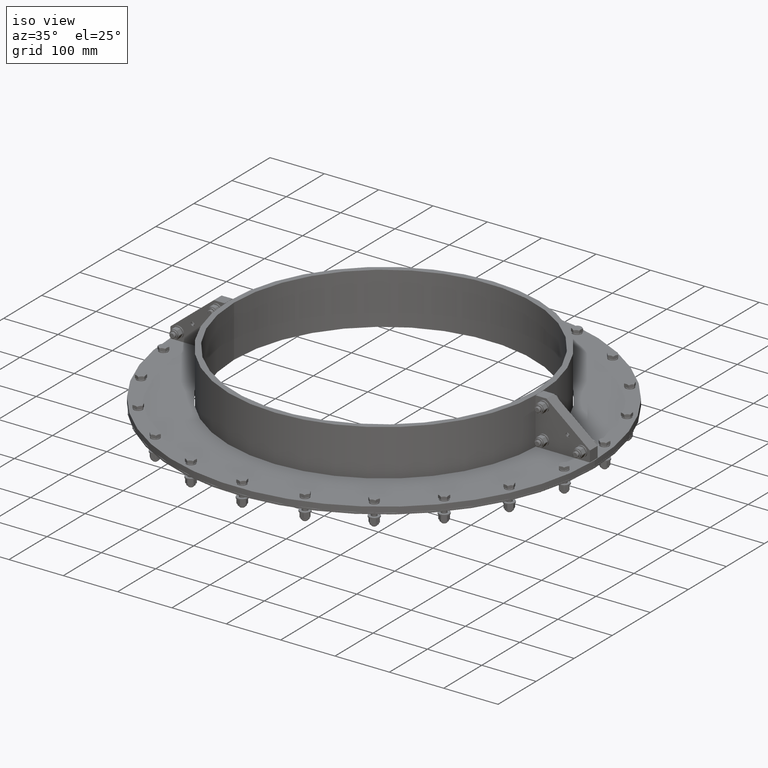
[diagram: clean part render]
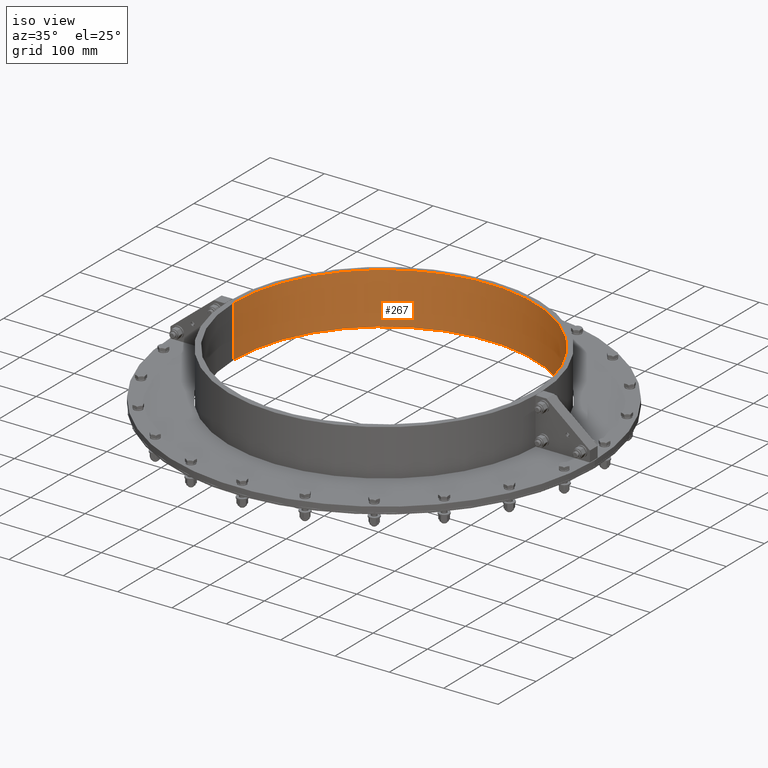
[diagram: same view with one face highlighted and labeled with its STEP entity id]
A machine part, iso view. The second image highlights one B-rep face of the part: STEP entity #267.
In plain terms, the highlighted cylindrical surface (partial cylindrical patch) has radius 276 mm, axis along (-0, -0, 1).
Its self-contained STEP definition (entity closure, byte-faithful):
#161=CARTESIAN_POINT('',(275.9999275362224,0.2,95.0));
#162=VERTEX_POINT('',#161);
#169=CARTESIAN_POINT('',(275.9999275362224,0.2,0.0));
#170=VERTEX_POINT('',#169);
#171=CARTESIAN_POINT('',(275.9999275362224,0.2,0.0));
#172=DIRECTION('',(0.0,0.0,1.0));
#173=VECTOR('',#172,95.0);
#174=LINE('',#171,#173);
#175=EDGE_CURVE('',#170,#162,#174,.T.);
#201=CARTESIAN_POINT('',(-275.9999275362224,0.2,0.0));
#202=VERTEX_POINT('',#201);
#209=CARTESIAN_POINT('',(-275.9999275362224,0.2,95.0));
#210=VERTEX_POINT('',#209);
#211=CARTESIAN_POINT('',(-275.9999275362224,0.2,95.0));
#212=DIRECTION('',(0.0,0.0,-1.0));
#213=VECTOR('',#212,95.0);
#214=LINE('',#211,#213);
#215=EDGE_CURVE('',#210,#202,#214,.T.);
#240=CARTESIAN_POINT('',(0.0,0.0,0.0));
#241=DIRECTION('',(0.0,0.0,1.0));
#242=DIRECTION('',(-1.0,0.0,0.0));
#243=AXIS2_PLACEMENT_3D('',#240,#241,#242);
#244=CIRCLE('',#243,276.0);
#245=EDGE_CURVE('',#170,#202,#244,.T.);
#250=CARTESIAN_POINT('',(0.0,0.0,0.0));
#251=DIRECTION('',(0.0,0.0,1.0));
#252=DIRECTION('',(-1.0,0.0,0.0));
#253=AXIS2_PLACEMENT_3D('',#250,#251,#252);
#254=CYLINDRICAL_SURFACE('',#253,276.0);
#255=ORIENTED_EDGE('',*,*,#215,.T.);
#256=ORIENTED_EDGE('',*,*,#245,.F.);
#257=ORIENTED_EDGE('',*,*,#175,.T.);
#258=CARTESIAN_POINT('',(0.0,0.0,95.0));
#259=DIRECTION('',(0.0,0.0,-1.0));
#260=DIRECTION('',(-1.0,0.0,0.0));
#261=AXIS2_PLACEMENT_3D('',#258,#259,#260);
#262=CIRCLE('',#261,276.0);
#263=EDGE_CURVE('',#210,#162,#262,.T.);
#264=ORIENTED_EDGE('',*,*,#263,.F.);
#265=EDGE_LOOP('',(#255,#256,#257,#264));
#266=FACE_OUTER_BOUND('',#265,.T.);
#267=ADVANCED_FACE('',(#266),#254,.F.);